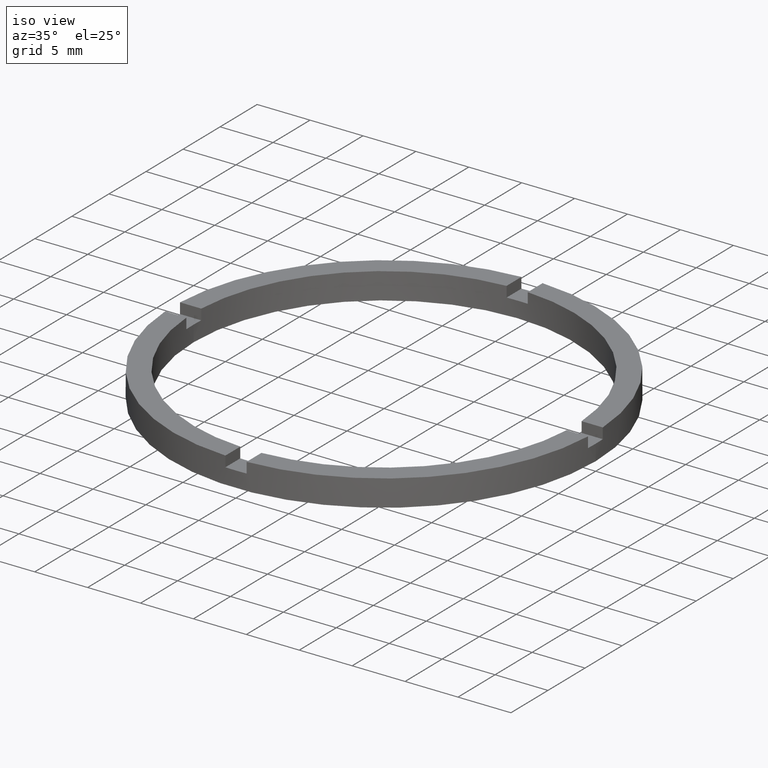
[diagram: clean part render]
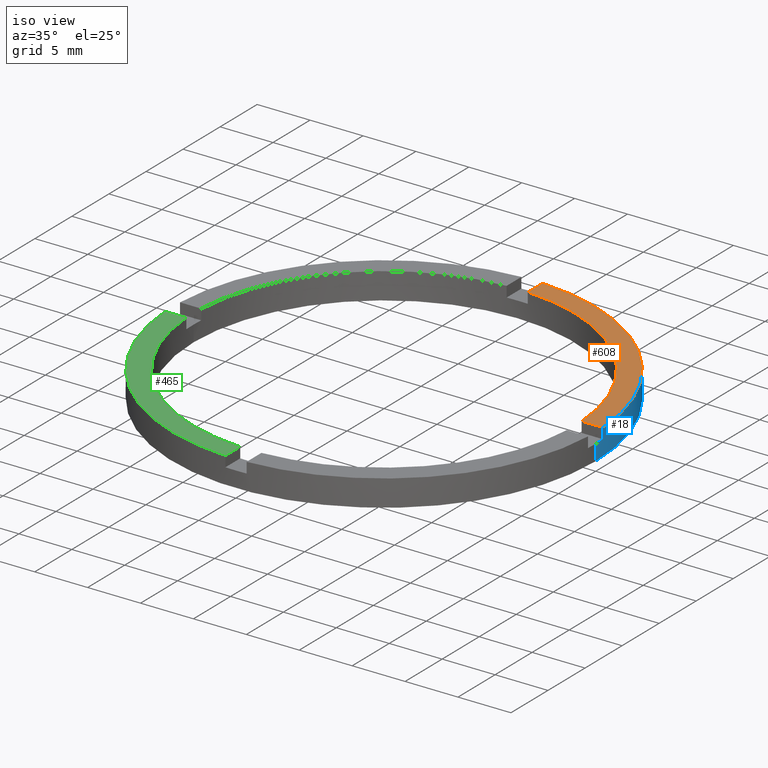
[diagram: same view with three faces highlighted in distinct colors, each labeled with its STEP entity id]
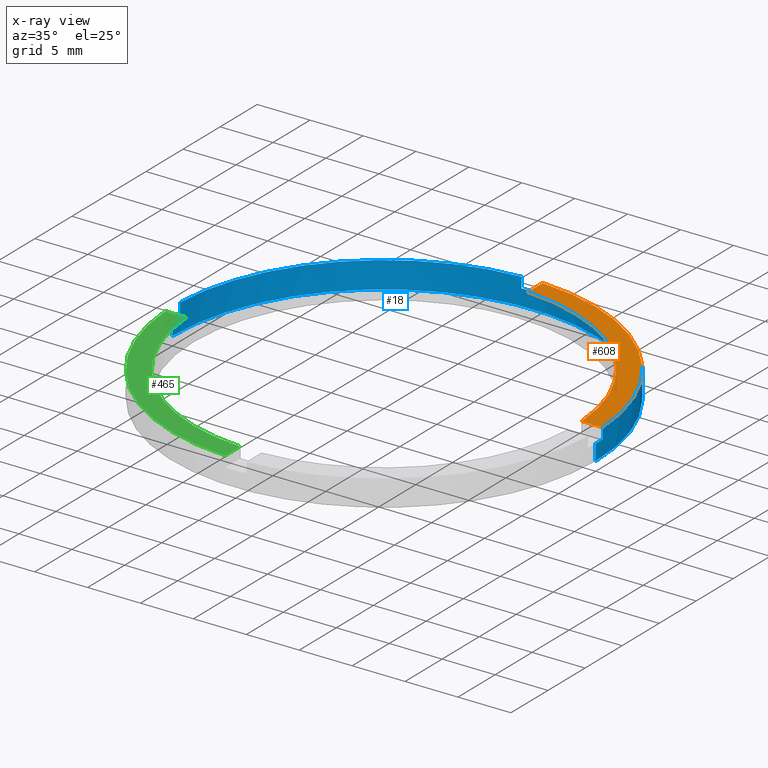
[diagram: x-ray of the same camera — body ghosted, the three highlighted faces saturated]
A machine part, iso view with three faces highlighted in distinct colors.
The next image is the same camera in x-ray (body ghosted, the three faces saturated) — at least one of them is partly hidden behind the body in this view.
Their STEP definitions:

[orange] entity #608 — the highlighted planar face has unit normal (0, 0, 1).
#5 = PLANE ( 'NONE',  #770 ) ;
#9 = CARTESIAN_POINT ( 'NONE',  ( 0.9999999999999731326, 10.00000000000000000, 2.500000000000000000 ) ) ;
#56 = ORIENTED_EDGE ( 'NONE', *, *, #265, .F. ) ;
#61 = DIRECTION ( 'NONE',  ( 1.000000000000000000, 0.000000000000000000, -0.000000000000000000 ) ) ;
#67 = CARTESIAN_POINT ( 'NONE',  ( 0.000000000000000000, 0.000000000000000000, 2.500000000000000000 ) ) ;
#101 = EDGE_LOOP ( 'NONE', ( #709, #56, #720, #498 ) ) ;
#199 = DIRECTION ( 'NONE',  ( 0.000000000000000000, 1.000000000000000000, 0.000000000000000000 ) ) ;
#208 = DIRECTION ( 'NONE',  ( 0.000000000000000000, 0.000000000000000000, 1.000000000000000000 ) ) ;
#218 = EDGE_CURVE ( 'NONE', #304, #308, #551, .T. ) ;
#237 = AXIS2_PLACEMENT_3D ( 'NONE', #290, #208, #755 ) ;
#265 = EDGE_CURVE ( 'NONE', #471, #622, #547, .T. ) ;
#290 = CARTESIAN_POINT ( 'NONE',  ( 0.000000000000000000, 0.000000000000000000, 2.500000000000000000 ) ) ;
#304 = VERTEX_POINT ( 'NONE', #601 ) ;
#308 = VERTEX_POINT ( 'NONE', #357 ) ;
#330 = CARTESIAN_POINT ( 'NONE',  ( 9.999999999999994671, 0.9999999999998423483, 2.500000000000000000 ) ) ;
#357 = CARTESIAN_POINT ( 'NONE',  ( 0.9999999999999731326, 19.97498435543818118, 2.500000000000000000 ) ) ;
#415 = CARTESIAN_POINT ( 'NONE',  ( 17.97220075561143560, 0.9999999999998427924, 2.500000000000000000 ) ) ;
#423 = FACE_OUTER_BOUND ( 'NONE', #101, .T. ) ;
#436 = VECTOR ( 'NONE', #199, 1000.000000000000000 ) ;
#454 = VECTOR ( 'NONE', #524, 1000.000000000000000 ) ;
#471 = VERTEX_POINT ( 'NONE', #415 ) ;
#493 = CARTESIAN_POINT ( 'NONE',  ( 0.000000000000000000, 0.000000000000000000, 2.500000000000000000 ) ) ;
#498 = ORIENTED_EDGE ( 'NONE', *, *, #218, .T. ) ;
#515 = EDGE_CURVE ( 'NONE', #304, #471, #704, .T. ) ;
#524 = DIRECTION ( 'NONE',  ( -1.000000000000000000, -6.505213034913025371E-17, -0.000000000000000000 ) ) ;
#547 = CIRCLE ( 'NONE', #237, 18.00000000000000000 ) ;
#551 = CIRCLE ( 'NONE', #733, 20.00000000000000000 ) ;
#556 = CARTESIAN_POINT ( 'NONE',  ( 0.9999999999999731326, 17.97220075561142849, 2.500000000000000000 ) ) ;
#601 = CARTESIAN_POINT ( 'NONE',  ( 19.97498435543818829, 0.9999999999998430145, 2.500000000000000000 ) ) ;
#608 = ADVANCED_FACE ( 'NONE', ( #423 ), #5, .T. ) ;
#622 = VERTEX_POINT ( 'NONE', #556 ) ;
#639 = EDGE_CURVE ( 'NONE', #622, #308, #693, .T. ) ;
#652 = DIRECTION ( 'NONE',  ( 0.000000000000000000, 0.000000000000000000, 1.000000000000000000 ) ) ;
#658 = DIRECTION ( 'NONE',  ( 0.000000000000000000, 0.000000000000000000, 1.000000000000000000 ) ) ;
#693 = LINE ( 'NONE', #9, #436 ) ;
#704 = LINE ( 'NONE', #330, #454 ) ;
#709 = ORIENTED_EDGE ( 'NONE', *, *, #639, .F. ) ;
#720 = ORIENTED_EDGE ( 'NONE', *, *, #515, .F. ) ;
#733 = AXIS2_PLACEMENT_3D ( 'NONE', #493, #652, #781 ) ;
#755 = DIRECTION ( 'NONE',  ( 1.000000000000000000, 0.000000000000000000, 0.000000000000000000 ) ) ;
#770 = AXIS2_PLACEMENT_3D ( 'NONE', #67, #658, #61 ) ;
#781 = DIRECTION ( 'NONE',  ( 1.000000000000000000, 0.000000000000000000, 0.000000000000000000 ) ) ;

[blue] entity #18 — the highlighted cylindrical surface (partial cylindrical patch) has radius 20 mm, axis along (-0, -0, -1).
#6 = CARTESIAN_POINT ( 'NONE',  ( -20.00000000000000000, 0.000000000000000000, 1.500000000000000000 ) ) ;
#18 = ADVANCED_FACE ( 'NONE', ( #301 ), #555, .T. ) ;
#22 = ORIENTED_EDGE ( 'NONE', *, *, #739, .T. ) ;
#33 = DIRECTION ( 'NONE',  ( -0.000000000000000000, -0.000000000000000000, -1.000000000000000000 ) ) ;
#39 = AXIS2_PLACEMENT_3D ( 'NONE', #118, #340, #204 ) ;
#45 = DIRECTION ( 'NONE',  ( 0.000000000000000000, 0.000000000000000000, 1.000000000000000000 ) ) ;
#53 = DIRECTION ( 'NONE',  ( 0.000000000000000000, 0.000000000000000000, 1.000000000000000000 ) ) ;
#57 = DIRECTION ( 'NONE',  ( -0.000000000000000000, -0.000000000000000000, -1.000000000000000000 ) ) ;
#65 = AXIS2_PLACEMENT_3D ( 'NONE', #591, #539, #354 ) ;
#68 = CARTESIAN_POINT ( 'NONE',  ( 19.97498435543818829, 0.9999999999998430145, 2.500000000000000000 ) ) ;
#85 = CARTESIAN_POINT ( 'NONE',  ( 0.9999999999999731326, 19.97498435543818118, 1.500000000000000000 ) ) ;
#88 = CARTESIAN_POINT ( 'NONE',  ( 20.00000000000000000, 2.449293598294706513E-15, 1.500000000000000000 ) ) ;
#93 = ORIENTED_EDGE ( 'NONE', *, *, #386, .T. ) ;
#102 = VERTEX_POINT ( 'NONE', #293 ) ;
#103 = DIRECTION ( 'NONE',  ( -0.000000000000000000, -0.000000000000000000, -1.000000000000000000 ) ) ;
#104 = VERTEX_POINT ( 'NONE', #412 ) ;
#118 = CARTESIAN_POINT ( 'NONE',  ( 0.000000000000000000, 0.000000000000000000, 1.500000000000000000 ) ) ;
#133 = DIRECTION ( 'NONE',  ( -1.000000000000000000, 0.000000000000000000, 0.000000000000000000 ) ) ;
#152 = AXIS2_PLACEMENT_3D ( 'NONE', #375, #761, #133 ) ;
#163 = DIRECTION ( 'NONE',  ( 0.000000000000000000, -0.000000000000000000, 1.000000000000000000 ) ) ;
#164 = VECTOR ( 'NONE', #33, 1000.000000000000000 ) ;
#166 = CIRCLE ( 'NONE', #325, 20.00000000000000000 ) ;
#186 = LINE ( 'NONE', #584, #192 ) ;
#191 = ORIENTED_EDGE ( 'NONE', *, *, #780, .F. ) ;
#192 = VECTOR ( 'NONE', #103, 1000.000000000000000 ) ;
#198 = LINE ( 'NONE', #522, #706 ) ;
#200 = EDGE_CURVE ( 'NONE', #442, #741, #571, .T. ) ;
#204 = DIRECTION ( 'NONE',  ( 1.000000000000000000, 0.000000000000000000, 0.000000000000000000 ) ) ;
#218 = EDGE_CURVE ( 'NONE', #304, #308, #551, .T. ) ;
#242 = CARTESIAN_POINT ( 'NONE',  ( 0.000000000000000000, 0.000000000000000000, 1.500000000000000000 ) ) ;
#251 = CARTESIAN_POINT ( 'NONE',  ( 0.000000000000000000, 0.000000000000000000, 1.500000000000000000 ) ) ;
#269 = EDGE_CURVE ( 'NONE', #304, #644, #288, .T. ) ;
#282 = DIRECTION ( 'NONE',  ( 1.000000000000000000, 0.000000000000000000, 0.000000000000000000 ) ) ;
#288 = LINE ( 'NONE', #68, #534 ) ;
#293 = CARTESIAN_POINT ( 'NONE',  ( -20.00000000000000000, 0.000000000000000000, 0.000000000000000000 ) ) ;
#301 = FACE_OUTER_BOUND ( 'NONE', #630, .T. ) ;
#304 = VERTEX_POINT ( 'NONE', #601 ) ;
#308 = VERTEX_POINT ( 'NONE', #357 ) ;
#317 = DIRECTION ( 'NONE',  ( -0.000000000000000000, -0.000000000000000000, -1.000000000000000000 ) ) ;
#318 = ORIENTED_EDGE ( 'NONE', *, *, #443, .F. ) ;
#325 = AXIS2_PLACEMENT_3D ( 'NONE', #242, #163, #401 ) ;
#340 = DIRECTION ( 'NONE',  ( 0.000000000000000000, 0.000000000000000000, 1.000000000000000000 ) ) ;
#341 = DIRECTION ( 'NONE',  ( 0.000000000000000000, 0.000000000000000000, 1.000000000000000000 ) ) ;
#354 = DIRECTION ( 'NONE',  ( 1.000000000000000000, 0.000000000000000000, 0.000000000000000000 ) ) ;
#357 = CARTESIAN_POINT ( 'NONE',  ( 0.9999999999999731326, 19.97498435543818118, 2.500000000000000000 ) ) ;
#358 = VERTEX_POINT ( 'NONE', #512 ) ;
#365 = ORIENTED_EDGE ( 'NONE', *, *, #435, .T. ) ;
#373 = ORIENTED_EDGE ( 'NONE', *, *, #633, .F. ) ;
#375 = CARTESIAN_POINT ( 'NONE',  ( 0.000000000000000000, 0.000000000000000000, 2.500000000000000000 ) ) ;
#380 = ORIENTED_EDGE ( 'NONE', *, *, #766, .F. ) ;
#386 = EDGE_CURVE ( 'NONE', #624, #104, #690, .T. ) ;
#387 = VERTEX_POINT ( 'NONE', #85 ) ;
#391 = AXIS2_PLACEMENT_3D ( 'NONE', #774, #45, #282 ) ;
#401 = DIRECTION ( 'NONE',  ( 1.000000000000000000, 0.000000000000000000, 0.000000000000000000 ) ) ;
#412 = CARTESIAN_POINT ( 'NONE',  ( -1.000000000000026867, 19.97498435543817763, 1.500000000000000000 ) ) ;
#414 = CIRCLE ( 'NONE', #714, 20.00000000000000000 ) ;
#425 = DIRECTION ( 'NONE',  ( 0.000000000000000000, 0.000000000000000000, 1.000000000000000000 ) ) ;
#435 = EDGE_CURVE ( 'NONE', #741, #102, #694, .T. ) ;
#442 = VERTEX_POINT ( 'NONE', #88 ) ;
#443 = EDGE_CURVE ( 'NONE', #387, #104, #166, .T. ) ;
#456 = ORIENTED_EDGE ( 'NONE', *, *, #200, .T. ) ;
#468 = CIRCLE ( 'NONE', #39, 20.00000000000000000 ) ;
#489 = CARTESIAN_POINT ( 'NONE',  ( 20.00000000000000000, 2.449293598294706513E-15, 2.500000000000000000 ) ) ;
#493 = CARTESIAN_POINT ( 'NONE',  ( 0.000000000000000000, 0.000000000000000000, 2.500000000000000000 ) ) ;
#497 = VERTEX_POINT ( 'NONE', #518 ) ;
#512 = CARTESIAN_POINT ( 'NONE',  ( -19.97498435543818118, 0.9999999999999742428, 2.500000000000000000 ) ) ;
#518 = CARTESIAN_POINT ( 'NONE',  ( -19.97498435543818118, 0.9999999999999742428, 1.500000000000000000 ) ) ;
#522 = CARTESIAN_POINT ( 'NONE',  ( -19.97498435543818118, 0.9999999999999742428, 2.500000000000000000 ) ) ;
#534 = VECTOR ( 'NONE', #317, 1000.000000000000000 ) ;
#539 = DIRECTION ( 'NONE',  ( 0.000000000000000000, 0.000000000000000000, 1.000000000000000000 ) ) ;
#543 = VECTOR ( 'NONE', #57, 1000.000000000000000 ) ;
#549 = EDGE_CURVE ( 'NONE', #387, #308, #692, .T. ) ;
#551 = CIRCLE ( 'NONE', #733, 20.00000000000000000 ) ;
#555 = CYLINDRICAL_SURFACE ( 'NONE', #152, 20.00000000000000000 ) ;
#571 = LINE ( 'NONE', #489, #543 ) ;
#584 = CARTESIAN_POINT ( 'NONE',  ( -20.00000000000000000, 0.000000000000000000, 2.500000000000000000 ) ) ;
#586 = CARTESIAN_POINT ( 'NONE',  ( 0.9999999999999731326, 19.97498435543818118, 2.500000000000000000 ) ) ;
#591 = CARTESIAN_POINT ( 'NONE',  ( 0.000000000000000000, 0.000000000000000000, 2.500000000000000000 ) ) ;
#599 = CARTESIAN_POINT ( 'NONE',  ( -1.000000000000026867, 19.97498435543817763, 2.500000000000000000 ) ) ;
#600 = EDGE_CURVE ( 'NONE', #624, #358, #676, .T. ) ;
#601 = CARTESIAN_POINT ( 'NONE',  ( 19.97498435543818829, 0.9999999999998430145, 2.500000000000000000 ) ) ;
#621 = ORIENTED_EDGE ( 'NONE', *, *, #218, .F. ) ;
#624 = VERTEX_POINT ( 'NONE', #599 ) ;
#629 = VERTEX_POINT ( 'NONE', #6 ) ;
#630 = EDGE_LOOP ( 'NONE', ( #191, #456, #365, #380, #373, #22, #729, #93, #318, #637, #621, #634 ) ) ;
#633 = EDGE_CURVE ( 'NONE', #497, #629, #414, .T. ) ;
#634 = ORIENTED_EDGE ( 'NONE', *, *, #269, .T. ) ;
#637 = ORIENTED_EDGE ( 'NONE', *, *, #549, .T. ) ;
#644 = VERTEX_POINT ( 'NONE', #655 ) ;
#648 = CARTESIAN_POINT ( 'NONE',  ( 20.00000000000000000, 2.449293598294706513E-15, 0.000000000000000000 ) ) ;
#652 = DIRECTION ( 'NONE',  ( 0.000000000000000000, 0.000000000000000000, 1.000000000000000000 ) ) ;
#655 = CARTESIAN_POINT ( 'NONE',  ( 19.97498435543818829, 0.9999999999998430145, 1.500000000000000000 ) ) ;
#672 = VECTOR ( 'NONE', #341, 1000.000000000000000 ) ;
#676 = CIRCLE ( 'NONE', #65, 20.00000000000000000 ) ;
#690 = LINE ( 'NONE', #769, #164 ) ;
#692 = LINE ( 'NONE', #586, #672 ) ;
#694 = CIRCLE ( 'NONE', #391, 20.00000000000000000 ) ;
#706 = VECTOR ( 'NONE', #53, 1000.000000000000000 ) ;
#714 = AXIS2_PLACEMENT_3D ( 'NONE', #251, #425, #779 ) ;
#729 = ORIENTED_EDGE ( 'NONE', *, *, #600, .F. ) ;
#733 = AXIS2_PLACEMENT_3D ( 'NONE', #493, #652, #781 ) ;
#739 = EDGE_CURVE ( 'NONE', #497, #358, #198, .T. ) ;
#741 = VERTEX_POINT ( 'NONE', #648 ) ;
#761 = DIRECTION ( 'NONE',  ( -0.000000000000000000, -0.000000000000000000, -1.000000000000000000 ) ) ;
#766 = EDGE_CURVE ( 'NONE', #629, #102, #186, .T. ) ;
#769 = CARTESIAN_POINT ( 'NONE',  ( -1.000000000000026867, 19.97498435543817763, 2.500000000000000000 ) ) ;
#774 = CARTESIAN_POINT ( 'NONE',  ( 0.000000000000000000, 0.000000000000000000, 0.000000000000000000 ) ) ;
#779 = DIRECTION ( 'NONE',  ( 1.000000000000000000, 0.000000000000000000, 0.000000000000000000 ) ) ;
#780 = EDGE_CURVE ( 'NONE', #442, #644, #468, .T. ) ;
#781 = DIRECTION ( 'NONE',  ( 1.000000000000000000, 0.000000000000000000, 0.000000000000000000 ) ) ;

[green] entity #465 — the highlighted planar face has unit normal (0, 0, 1).
#82 = CARTESIAN_POINT ( 'NONE',  ( -17.97220075561142849, -1.000000000000025313, 2.500000000000000000 ) ) ;
#97 = DIRECTION ( 'NONE',  ( 0.000000000000000000, 0.000000000000000000, 1.000000000000000000 ) ) ;
#123 = ORIENTED_EDGE ( 'NONE', *, *, #535, .T. ) ;
#153 = LINE ( 'NONE', #636, #156 ) ;
#156 = VECTOR ( 'NONE', #297, 1000.000000000000000 ) ;
#161 = LINE ( 'NONE', #529, #408 ) ;
#225 = AXIS2_PLACEMENT_3D ( 'NONE', #243, #97, #590 ) ;
#243 = CARTESIAN_POINT ( 'NONE',  ( 0.000000000000000000, 0.000000000000000000, 2.500000000000000000 ) ) ;
#247 = CARTESIAN_POINT ( 'NONE',  ( -1.000000000000160538, -19.97498435543817052, 2.500000000000000000 ) ) ;
#255 = AXIS2_PLACEMENT_3D ( 'NONE', #474, #479, #737 ) ;
#287 = PLANE ( 'NONE',  #225 ) ;
#295 = DIRECTION ( 'NONE',  ( 1.301042606982605321E-16, -1.000000000000000000, 0.000000000000000000 ) ) ;
#297 = DIRECTION ( 'NONE',  ( 1.000000000000000000, 1.734723475976807341E-16, -0.000000000000000000 ) ) ;
#322 = DIRECTION ( 'NONE',  ( 0.000000000000000000, 0.000000000000000000, 1.000000000000000000 ) ) ;
#343 = VERTEX_POINT ( 'NONE', #82 ) ;
#361 = CARTESIAN_POINT ( 'NONE',  ( -1.000000000000160760, -17.97220075561141783, 2.500000000000000000 ) ) ;
#381 = ORIENTED_EDGE ( 'NONE', *, *, #582, .F. ) ;
#385 = EDGE_LOOP ( 'NONE', ( #612, #642, #381, #123 ) ) ;
#393 = CARTESIAN_POINT ( 'NONE',  ( -19.97498435543818118, -1.000000000000025757, 2.500000000000000000 ) ) ;
#406 = CIRCLE ( 'NONE', #255, 20.00000000000000000 ) ;
#408 = VECTOR ( 'NONE', #295, 1000.000000000000000 ) ;
#434 = CIRCLE ( 'NONE', #782, 18.00000000000000000 ) ;
#446 = FACE_OUTER_BOUND ( 'NONE', #385, .T. ) ;
#462 = VERTEX_POINT ( 'NONE', #247 ) ;
#464 = EDGE_CURVE ( 'NONE', #735, #462, #161, .T. ) ;
#465 = ADVANCED_FACE ( 'NONE', ( #446 ), #287, .T. ) ;
#474 = CARTESIAN_POINT ( 'NONE',  ( 0.000000000000000000, 0.000000000000000000, 2.500000000000000000 ) ) ;
#479 = DIRECTION ( 'NONE',  ( 0.000000000000000000, 0.000000000000000000, 1.000000000000000000 ) ) ;
#514 = EDGE_CURVE ( 'NONE', #343, #735, #434, .T. ) ;
#517 = VERTEX_POINT ( 'NONE', #393 ) ;
#529 = CARTESIAN_POINT ( 'NONE',  ( -1.000000000000161871, -10.00000000000018119, 2.500000000000000000 ) ) ;
#535 = EDGE_CURVE ( 'NONE', #517, #462, #406, .T. ) ;
#550 = CARTESIAN_POINT ( 'NONE',  ( 0.000000000000000000, 0.000000000000000000, 2.500000000000000000 ) ) ;
#558 = DIRECTION ( 'NONE',  ( 1.000000000000000000, 0.000000000000000000, 0.000000000000000000 ) ) ;
#582 = EDGE_CURVE ( 'NONE', #517, #343, #153, .T. ) ;
#590 = DIRECTION ( 'NONE',  ( 1.000000000000000000, 0.000000000000000000, -0.000000000000000000 ) ) ;
#612 = ORIENTED_EDGE ( 'NONE', *, *, #464, .F. ) ;
#636 = CARTESIAN_POINT ( 'NONE',  ( -10.00000000000018652, -1.000000000000023981, 2.500000000000000000 ) ) ;
#642 = ORIENTED_EDGE ( 'NONE', *, *, #514, .F. ) ;
#735 = VERTEX_POINT ( 'NONE', #361 ) ;
#737 = DIRECTION ( 'NONE',  ( 1.000000000000000000, 0.000000000000000000, 0.000000000000000000 ) ) ;
#782 = AXIS2_PLACEMENT_3D ( 'NONE', #550, #322, #558 ) ;